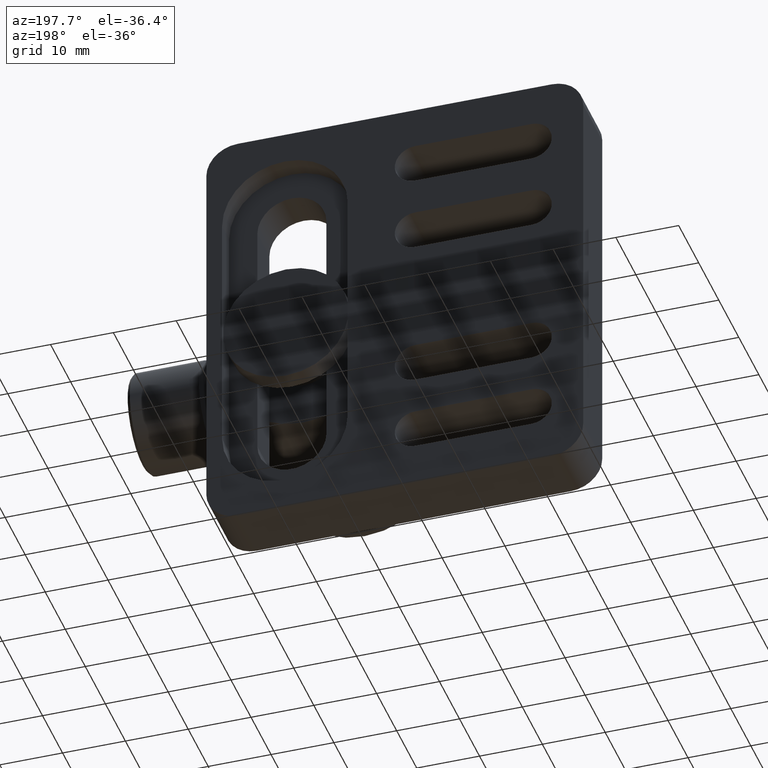
[diagram: clean part render]
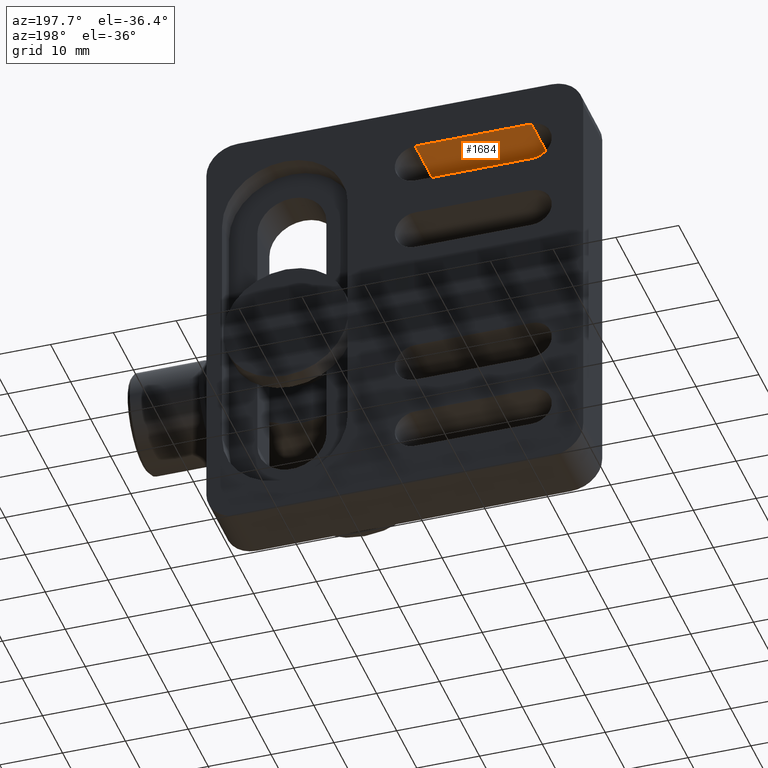
[diagram: same view with one face highlighted and labeled with its STEP entity id]
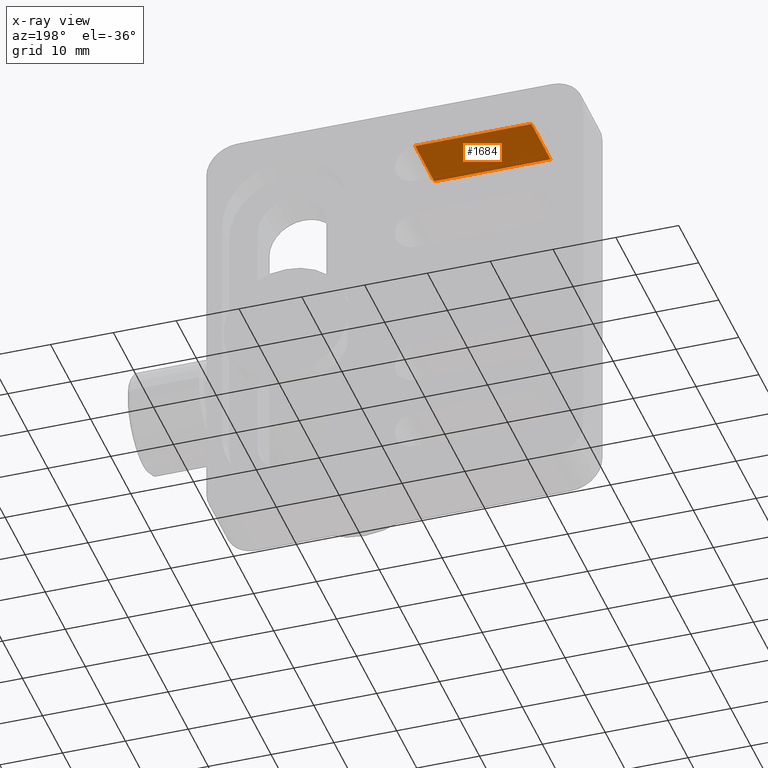
[diagram: x-ray of the same camera — body ghosted, the highlighted face saturated]
A machine part, auxiliary view. The second image highlights one B-rep face of the part: STEP entity #1684.
The next image is the same camera in x-ray: the body ghosted, the highlighted face saturated — about 5% of this face is hidden behind the body in this view.
In plain terms, the highlighted planar face has unit normal (0, 0, 1).
Its self-contained STEP definition (entity closure, byte-faithful):
#218 = AXIS2_PLACEMENT_3D ( 'NONE', #3091, #3131, #1141 ) ;
#307 = EDGE_CURVE ( 'NONE', #3558, #2667, #2915, .T. ) ;
#371 = DIRECTION ( 'NONE',  ( -0.0000000000000000000, 1.000000000000000000, -0.0000000000000000000 ) ) ;
#430 = ORIENTED_EDGE ( 'NONE', *, *, #1248, .F. ) ;
#515 = EDGE_CURVE ( 'NONE', #1087, #2667, #1193, .T. ) ;
#1032 = CARTESIAN_POINT ( 'NONE',  ( -19.84264305177110900, -11.86148955495005100, 28.25000000000000000 ) ) ;
#1086 = DIRECTION ( 'NONE',  ( 1.000000000000000000, 0.0000000000000000000, -3.750753461571475400E-016 ) ) ;
#1087 = VERTEX_POINT ( 'NONE', #1329 ) ;
#1089 = LINE ( 'NONE', #1425, #3540 ) ;
#1141 = DIRECTION ( 'NONE',  ( 1.000000000000000000, 0.0000000000000000000, -3.750753461571475400E-016 ) ) ;
#1193 = LINE ( 'NONE', #3226, #4207 ) ;
#1248 = EDGE_CURVE ( 'NONE', #3457, #3558, #4122, .T. ) ;
#1264 = DIRECTION ( 'NONE',  ( 1.000000000000000000, 0.0000000000000000000, -3.750753461571475400E-016 ) ) ;
#1329 = CARTESIAN_POINT ( 'NONE',  ( -19.84264305177110900, -2.361489554950050100, 28.25000000000000000 ) ) ;
#1425 = CARTESIAN_POINT ( 'NONE',  ( -19.84264305177110900, -11.86148955495005100, 28.25000000000000000 ) ) ;
#1456 = PLANE ( 'NONE',  #218 ) ;
#1476 = CARTESIAN_POINT ( 'NONE',  ( -1.342643051771110100, -11.86148955495005100, 28.24999999999999300 ) ) ;
#1518 = VECTOR ( 'NONE', #1086, 1000.000000000000000 ) ;
#1603 = ORIENTED_EDGE ( 'NONE', *, *, #307, .F. ) ;
#1664 = DIRECTION ( 'NONE',  ( -0.0000000000000000000, 1.000000000000000000, -0.0000000000000000000 ) ) ;
#1684 = ADVANCED_FACE ( 'NONE', ( #3544 ), #1456, .F. ) ;
#1738 = ORIENTED_EDGE ( 'NONE', *, *, #2063, .T. ) ;
#2063 = EDGE_CURVE ( 'NONE', #3457, #1087, #1089, .T. ) ;
#2667 = VERTEX_POINT ( 'NONE', #3125 ) ;
#2768 = CARTESIAN_POINT ( 'NONE',  ( 1.907356948228893900, -11.86148955495005100, 28.24999999999999300 ) ) ;
#2815 = VECTOR ( 'NONE', #371, 1000.000000000000000 ) ;
#2915 = LINE ( 'NONE', #3060, #2815 ) ;
#3028 = EDGE_LOOP ( 'NONE', ( #4263, #1603, #430, #1738 ) ) ;
#3060 = CARTESIAN_POINT ( 'NONE',  ( -1.342643051771110100, -11.86148955495005100, 28.24999999999999300 ) ) ;
#3091 = CARTESIAN_POINT ( 'NONE',  ( 1.907356948228893900, -11.86148955495005100, 28.24999999999999300 ) ) ;
#3125 = CARTESIAN_POINT ( 'NONE',  ( -1.342643051771110100, -2.361489554950050100, 28.24999999999999300 ) ) ;
#3131 = DIRECTION ( 'NONE',  ( 3.750753461571475400E-016, 0.0000000000000000000, 1.000000000000000000 ) ) ;
#3226 = CARTESIAN_POINT ( 'NONE',  ( 1.907356948228893900, -2.361489554950050100, 28.24999999999999300 ) ) ;
#3457 = VERTEX_POINT ( 'NONE', #1032 ) ;
#3540 = VECTOR ( 'NONE', #1664, 1000.000000000000000 ) ;
#3544 = FACE_OUTER_BOUND ( 'NONE', #3028, .T. ) ;
#3558 = VERTEX_POINT ( 'NONE', #1476 ) ;
#4122 = LINE ( 'NONE', #2768, #1518 ) ;
#4207 = VECTOR ( 'NONE', #1264, 1000.000000000000000 ) ;
#4263 = ORIENTED_EDGE ( 'NONE', *, *, #515, .T. ) ;